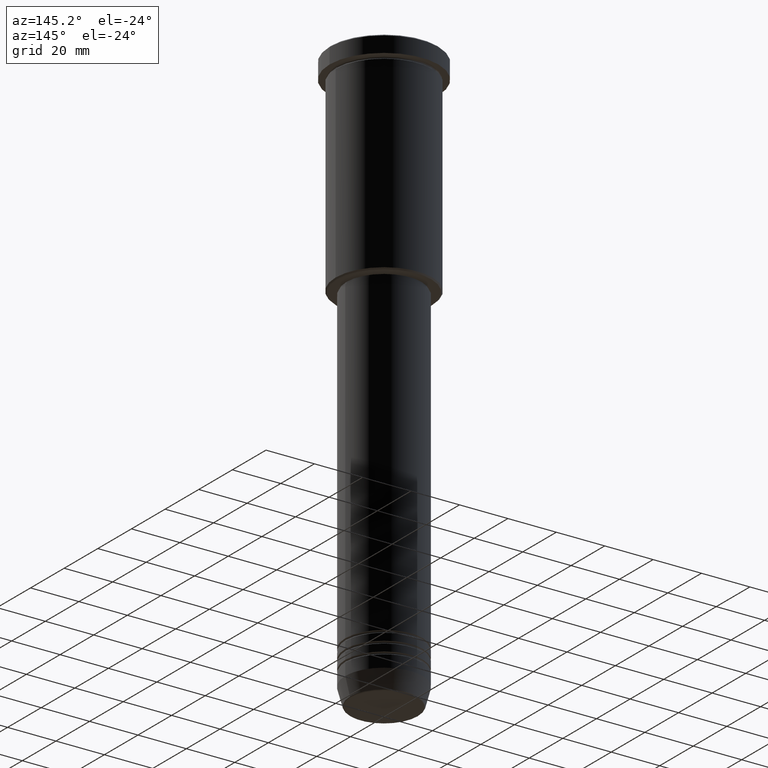
[diagram: clean part render]
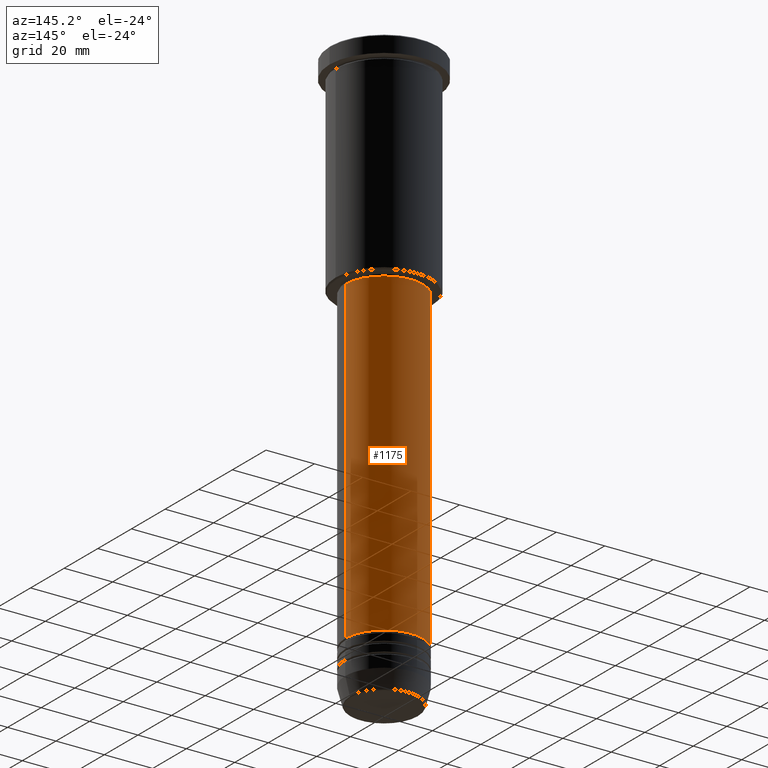
[diagram: same view with one face highlighted and labeled with its STEP entity id]
A machine part, auxiliary view. The second image highlights one B-rep face of the part: STEP entity #1175.
In plain terms, the highlighted cylindrical surface (partial cylindrical patch) has radius 16 mm, axis along (-0, -0, 1).
Its self-contained STEP definition (entity closure, byte-faithful):
#34 = EDGE_CURVE ( 'NONE', #849, #592, #372, .T. ) ;
#54 = DIRECTION ( 'NONE',  ( -0.000000000000000000, -0.000000000000000000, 1.000000000000000000 ) ) ;
#76 = DIRECTION ( 'NONE',  ( -0.000000000000000000, -0.000000000000000000, 1.000000000000000000 ) ) ;
#111 = DIRECTION ( 'NONE',  ( 1.000000000000000000, 0.000000000000000000, 0.000000000000000000 ) ) ;
#113 = CARTESIAN_POINT ( 'NONE',  ( 16.00000000000000000, 0.000000000000000000, -87.00000000000002842 ) ) ;
#138 = CARTESIAN_POINT ( 'NONE',  ( -16.00000000000000000, 1.959434878635765131E-15, -87.00000000000002842 ) ) ;
#146 = CARTESIAN_POINT ( 'NONE',  ( 0.000000000000000000, 0.000000000000000000, 0.000000000000000000 ) ) ;
#169 = VECTOR ( 'NONE', #885, 1000.000000000000000 ) ;
#243 = VECTOR ( 'NONE', #54, 1000.000000000000000 ) ;
#267 = DIRECTION ( 'NONE',  ( 1.000000000000000000, 0.000000000000000000, 0.000000000000000000 ) ) ;
#284 = DIRECTION ( 'NONE',  ( -0.000000000000000000, -0.000000000000000000, 1.000000000000000000 ) ) ;
#372 = LINE ( 'NONE', #620, #169 ) ;
#410 = CARTESIAN_POINT ( 'NONE',  ( 16.00000000000000000, 0.000000000000000000, -218.5000000000000000 ) ) ;
#429 = DIRECTION ( 'NONE',  ( 1.000000000000000000, 0.000000000000000000, 0.000000000000000000 ) ) ;
#442 = DIRECTION ( 'NONE',  ( -0.000000000000000000, -0.000000000000000000, 1.000000000000000000 ) ) ;
#493 = ORIENTED_EDGE ( 'NONE', *, *, #34, .T. ) ;
#496 = CIRCLE ( 'NONE', #716, 16.00000000000000000 ) ;
#504 = FACE_OUTER_BOUND ( 'NONE', #675, .T. ) ;
#506 = VERTEX_POINT ( 'NONE', #113 ) ;
#507 = VERTEX_POINT ( 'NONE', #410 ) ;
#592 = VERTEX_POINT ( 'NONE', #138 ) ;
#620 = CARTESIAN_POINT ( 'NONE',  ( -16.00000000000000000, 1.959434878635765131E-15, 0.000000000000000000 ) ) ;
#644 = AXIS2_PLACEMENT_3D ( 'NONE', #146, #76, #429 ) ;
#654 = CARTESIAN_POINT ( 'NONE',  ( 0.000000000000000000, 0.000000000000000000, -87.00000000000002842 ) ) ;
#664 = ORIENTED_EDGE ( 'NONE', *, *, #864, .F. ) ;
#675 = EDGE_LOOP ( 'NONE', ( #1154, #493, #1058, #664 ) ) ;
#716 = AXIS2_PLACEMENT_3D ( 'NONE', #982, #442, #267 ) ;
#762 = EDGE_CURVE ( 'NONE', #507, #849, #496, .T. ) ;
#774 = AXIS2_PLACEMENT_3D ( 'NONE', #654, #284, #111 ) ;
#829 = CIRCLE ( 'NONE', #774, 16.00000000000000000 ) ;
#849 = VERTEX_POINT ( 'NONE', #951 ) ;
#852 = LINE ( 'NONE', #857, #243 ) ;
#857 = CARTESIAN_POINT ( 'NONE',  ( 16.00000000000000000, 0.000000000000000000, 0.000000000000000000 ) ) ;
#864 = EDGE_CURVE ( 'NONE', #507, #506, #852, .T. ) ;
#885 = DIRECTION ( 'NONE',  ( -0.000000000000000000, -0.000000000000000000, 1.000000000000000000 ) ) ;
#951 = CARTESIAN_POINT ( 'NONE',  ( -16.00000000000000000, 1.959434878635765131E-15, -218.5000000000000000 ) ) ;
#982 = CARTESIAN_POINT ( 'NONE',  ( 0.000000000000000000, 0.000000000000000000, -218.5000000000000000 ) ) ;
#1058 = ORIENTED_EDGE ( 'NONE', *, *, #1060, .F. ) ;
#1060 = EDGE_CURVE ( 'NONE', #506, #592, #829, .T. ) ;
#1147 = CYLINDRICAL_SURFACE ( 'NONE', #644, 16.00000000000000000 ) ;
#1154 = ORIENTED_EDGE ( 'NONE', *, *, #762, .T. ) ;
#1175 = ADVANCED_FACE ( 'NONE', ( #504 ), #1147, .T. ) ;